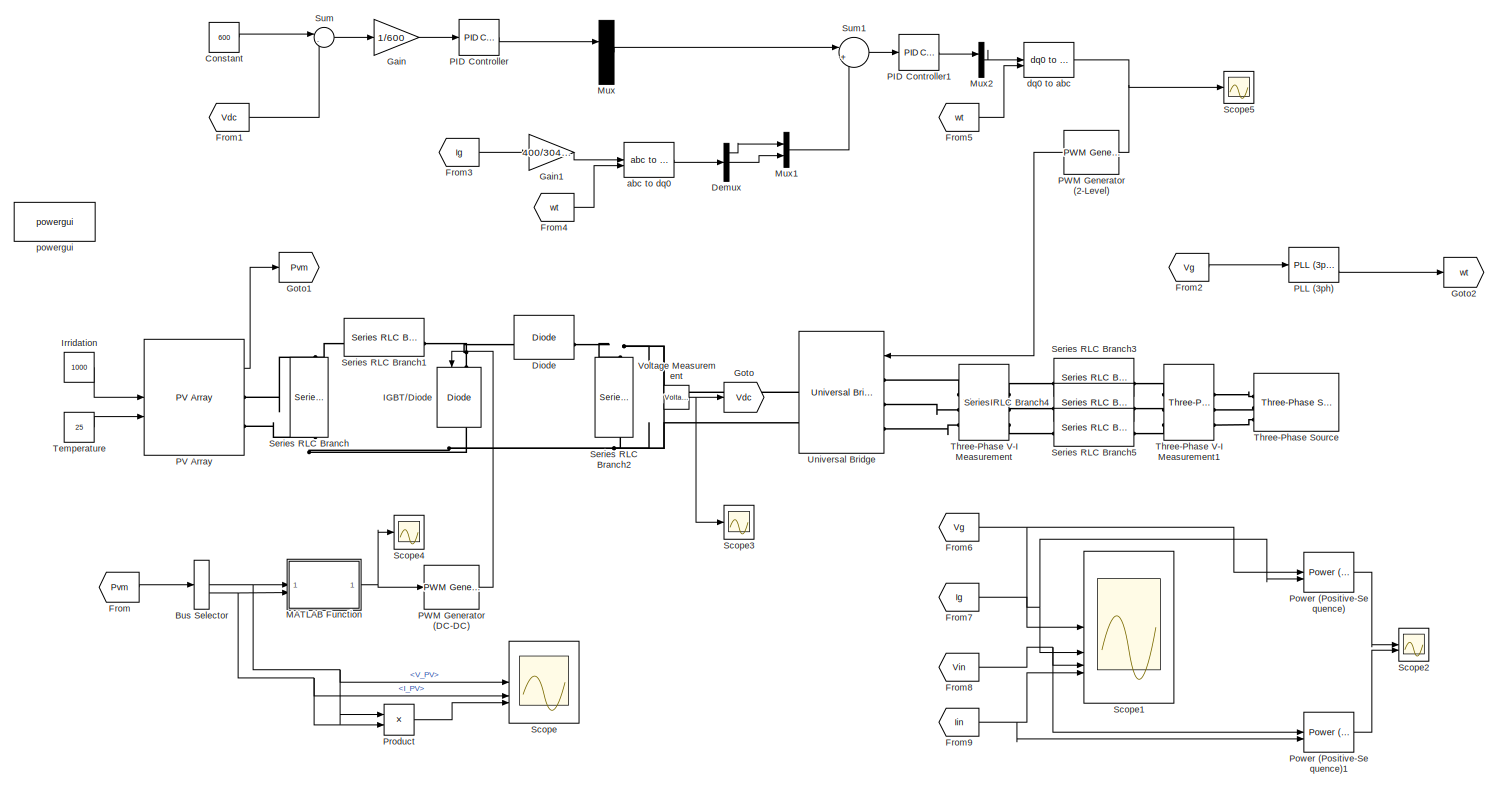
[diagram: root canvas - part 1/1, most of the canvas]
MODEL slx_63f302954788
KIND model
CONFIG AbsTol = auto
CONFIG EnableMultiTasking = off
CONFIG FixedStep = auto
CONFIG MaxStep = auto
CONFIG MinStep = auto
CONFIG RelTol = 1e-3
CONFIG SampleTimeConstraint = Unconstrained
CONFIG SolverName = VariableStepAuto
CONFIG StartTime = 0.0
CONFIG StopTime = 10.0
BLOCK [BusSelector] Bus Selector
  OutputSignals = V_PV,I_PV
BLOCK [Constant] Constant
  Value = 600
BLOCK [Demux] Demux
  Outputs = 3
BLOCK [Reference] Diode  REF=spsDiodeLib/Diode
  LibrarySourceBlock = sps_lib/Power Electronics/Diode
  SourceBlock = spsDiodeLib/Diode
  SourceType = Diode
BLOCK [From] From
  GotoTag = Pvm
BLOCK [From] From1
  GotoTag = Vdc
BLOCK [From] From2
  GotoTag = Vg
  TagVisibility = global
BLOCK [From] From3
  GotoTag = Ig
  TagVisibility = global
BLOCK [From] From4
  GotoTag = wt
BLOCK [From] From5
  GotoTag = wt
BLOCK [From] From6
  GotoTag = Vg
  TagVisibility = global
BLOCK [From] From7
  GotoTag = Ig
  TagVisibility = global
BLOCK [From] From8
  GotoTag = Vin
  TagVisibility = global
BLOCK [From] From9
  GotoTag = Iin
  TagVisibility = global
BLOCK [Gain] Gain
  Gain = 1/600
BLOCK [Gain] Gain1
  Gain = 400/3048000
BLOCK [Goto] Goto
  GotoTag = Vdc
BLOCK [Goto] Goto1
  GotoTag = Pvm
BLOCK [Goto] Goto2
  GotoTag = wt
BLOCK [Reference] IGBT//Diode  REF=spsIGBTDiodeLib/IGBT//Diode
  NameLocation = left
  SourceBlock = spsIGBTDiodeLib/IGBT//Diode
  SourceType = IGBT/Diode
BLOCK [Constant] Irridation
  Value = 1000
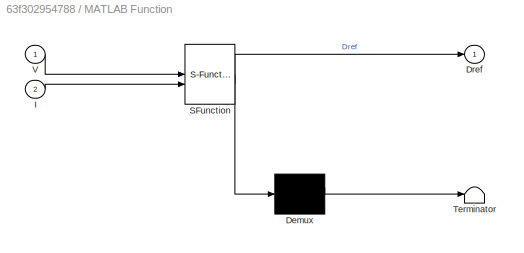
BLOCK [SubSystem] MATLAB Function
  ErrorFcn = Stateflow.Translate.translate
  PermitHierarchicalResolution = ExplicitOnly
  SFBlockType = MATLAB Function
  TreatAsAtomicUnit = on
BLOCK [Demux] MATLAB Function/ Demux 
  Outputs = 1
BLOCK [S-Function] MATLAB Function/ SFunction 
  EnableBusSupport = on
  FunctionName = sf_sfun
  PortCounts = [2 2]
  SFcnIsStateOwnerBlock = off
  SFunctionDeploymentMode = off
  Tag = Stateflow S-Function 2
BLOCK [Terminator] MATLAB Function/ Terminator 
BLOCK [Outport] MATLAB Function/Dref
BLOCK [Inport] MATLAB Function/I
  Port = 2
BLOCK [Inport] MATLAB Function/V
BLOCK [Mux] Mux
  DisplayOption = bar
  Inputs = 2
BLOCK [Mux] Mux1
  DisplayOption = bar
  Inputs = 2
BLOCK [Mux] Mux2
  DisplayOption = bar
  Inputs = 2
BLOCK [Reference] PID Controller  REF=slpidlib/PID Controller
  LibrarySourceBlock = simulink/Continuous/PID Controller
  SourceBlock = slpidlib/PID Controller
  SourceType = PID 1dof
BLOCK [Reference] PID Controller1  REF=slpidlib/PID Controller
  LibrarySourceBlock = simulink/Continuous/PID Controller
  SourceBlock = slpidlib/PID Controller
  SourceType = PID 1dof
BLOCK [Reference] PLL (3ph)  REF=spsPLL3phLib/PLL
(3ph)
  LibrarySourceBlock = sps_lib/Control/PLL\n(3ph)
  SourceBlock = spsPLL3phLib/PLL\n(3ph)
  SourceType = PLL (3ph)
BLOCK [Reference] PV Array  REF=spsPVArrayLib/PV Array
  LibrarySourceBlock = sps_lib/Sources/PV Array
  SourceBlock = spsPVArrayLib/PV Array
  SourceType = PV array
BLOCK [Reference] PWM Generator (2-Level)  REF=spsPWMGenerator2LevelLib/PWM Generator
(2-Level)
  LibrarySourceBlock = sps_lib/Power Electronics/Power Electronics Control/PWM Generator\n(2-Level)
  NameLocation = top
  SourceBlock = spsPWMGenerator2LevelLib/PWM Generator\n(2-Level)
  SourceType = PWM Generator (2-Level)
BLOCK [Reference] PWM Generator (DC-DC)  REF=spsPWMGeneratorDCDCLib/PWM Generator
(DC-DC)
  LibrarySourceBlock = sps_lib/Power Electronics/Power Electronics Control/PWM Generator\n(DC-DC)
  SourceBlock = spsPWMGeneratorDCDCLib/PWM Generator\n(DC-DC)
  SourceType = PWM Generator (DC-DC)
BLOCK [Reference] Power (Positive-Sequence)  REF=spsPowerPositiveSequenceLib/Power
(Positive-Sequence)
  LibrarySourceBlock = sps_lib/Sensors and Measurements/Power\n(Positive-Sequence)
  SourceBlock = spsPowerPositiveSequenceLib/Power\n(Positive-Sequence)
  SourceType = Power (Positive-Sequence)
BLOCK [Reference] Power (Positive-Sequence)1  REF=spsPowerPositiveSequenceLib/Power
(Positive-Sequence)
  LibrarySourceBlock = sps_lib/Sensors and Measurements/Power\n(Positive-Sequence)
  SourceBlock = spsPowerPositiveSequenceLib/Power\n(Positive-Sequence)
  SourceType = Power (Positive-Sequence)
BLOCK [Product] Product
BLOCK [Scope] Scope
  Floating = off
  NumInputPorts = 3
  ScopeSpecificationString = Simulink.scopes.TimeScopeBlockCfg('CurrentConfiguration', extmgr.ConfigurationSet(extmgr.Configuration('Core','General UI',true),extmgr.Configuration('Core','Source UI',true),extmgr.Configuration('Sources','WiredSimulink',true),extmgr.Configuration('Visuals','Time Domain',true,'SerializedDisplays',{struct('MinYLimReal','312.29846','MaxYLimReal','324.95244','YLabelReal','','MinYLimMag','312.29846',...<+3008ch>
BLOCK [Scope] Scope1
  Floating = off
  NumInputPorts = 4
  ScopeSpecificationString = Simulink.scopes.TimeScopeBlockCfg('CurrentConfiguration', extmgr.ConfigurationSet(extmgr.Configuration('Core','General UI',true),extmgr.Configuration('Core','Source UI',true),extmgr.Configuration('Sources','WiredSimulink',true,'DataLoggingVariableName','ScopeData1'),extmgr.Configuration('Visuals','Time Domain',true,'SerializedDisplays',{struct('MinYLimReal','-408.24829','MaxYLimReal','408.24829','...<+4000ch>
BLOCK [Scope] Scope2
  Floating = off
  NumInputPorts = 2
  ScopeSpecificationString = Simulink.scopes.TimeScopeBlockCfg('CurrentConfiguration', extmgr.ConfigurationSet(extmgr.Configuration('Core','General UI',true),extmgr.Configuration('Core','Source UI',true),extmgr.Configuration('Sources','WiredSimulink',true,'DataLoggingVariableName','ScopeData2'),extmgr.Configuration('Visuals','Time Domain',true,'SerializedDisplays',{struct('MinYLimReal','-0.01106','MaxYLimReal','0.07415','YLab...<+2171ch>
BLOCK [Scope] Scope3
  Floating = off
  NumInputPorts = 1
  ScopeSpecificationString = Simulink.scopes.TimeScopeBlockCfg('CurrentConfiguration', extmgr.ConfigurationSet(extmgr.Configuration('Core','General UI',true),extmgr.Configuration('Core','Source UI',true),extmgr.Configuration('Sources','WiredSimulink',true,'DataLoggingVariableName','ScopeData3'),extmgr.Configuration('Visuals','Time Domain',true,'SerializedDisplays',{struct('MinYLimReal','-159.97126','MaxYLimReal','1439.74135',...<+1682ch>
BLOCK [Scope] Scope4
  Floating = off
  NumInputPorts = 1
  ScopeSpecificationString = Simulink.scopes.TimeScopeBlockCfg('CurrentConfiguration', extmgr.ConfigurationSet(extmgr.Configuration('Core','General UI',true),extmgr.Configuration('Core','Source UI',true),extmgr.Configuration('Sources','WiredSimulink',true,'DataLoggingVariableName','ScopeData4'),extmgr.Configuration('Visuals','Time Domain',true,'SerializedDisplays',{struct('MinYLimReal','0.37137','MaxYLimReal','0.81607','YLabe...<+1625ch>
BLOCK [Scope] Scope5
  Floating = off
  NumInputPorts = 1
  ScopeSpecificationString = Simulink.scopes.TimeScopeBlockCfg('CurrentConfiguration', extmgr.ConfigurationSet(extmgr.Configuration('Core','General UI',true),extmgr.Configuration('Core','Source UI',true),extmgr.Configuration('Sources','WiredSimulink',true,'DataLoggingVariableName','ScopeData5'),extmgr.Configuration('Visuals','Time Domain',true,'SerializedDisplays',{struct('MinYLimReal','-2.90047','MaxYLimReal','1.96685','YLab...<+1594ch>
BLOCK [Reference] Series RLC Branch  REF=spsSeriesRLCBranchLib/Series RLC Branch
  LibrarySourceBlock = sps_lib/Passives/Series RLC Branch
  NameLocation = left
  SourceBlock = spsSeriesRLCBranchLib/Series RLC Branch
  SourceType = Series RLC Branch
BLOCK [Reference] Series RLC Branch1  REF=spsSeriesRLCBranchLib/Series RLC Branch
  LibrarySourceBlock = sps_lib/Passives/Series RLC Branch
  NameLocation = top
  SourceBlock = spsSeriesRLCBranchLib/Series RLC Branch
  SourceType = Series RLC Branch
BLOCK [Reference] Series RLC Branch2  REF=spsSeriesRLCBranchLib/Series RLC Branch
  LibrarySourceBlock = sps_lib/Passives/Series RLC Branch
  NameLocation = left
  SourceBlock = spsSeriesRLCBranchLib/Series RLC Branch
  SourceType = Series RLC Branch
BLOCK [Reference] Series RLC Branch3  REF=spsSeriesRLCBranchLib/Series RLC Branch
  LibrarySourceBlock = sps_lib/Passives/Series RLC Branch
  SourceBlock = spsSeriesRLCBranchLib/Series RLC Branch
  SourceType = Series RLC Branch
BLOCK [Reference] Series RLC Branch4  REF=spsSeriesRLCBranchLib/Series RLC Branch
  LibrarySourceBlock = sps_lib/Passives/Series RLC Branch
  SourceBlock = spsSeriesRLCBranchLib/Series RLC Branch
  SourceType = Series RLC Branch
BLOCK [Reference] Series RLC Branch5  REF=spsSeriesRLCBranchLib/Series RLC Branch
  LibrarySourceBlock = sps_lib/Passives/Series RLC Branch
  SourceBlock = spsSeriesRLCBranchLib/Series RLC Branch
  SourceType = Series RLC Branch
BLOCK [Sum] Sum
  Inputs = |-+
BLOCK [Sum] Sum1
  Inputs = |+-
BLOCK [Constant] Temperature
  Value = 25
BLOCK [Reference] Three-Phase Source  REF=spsThreePhaseSourceLib/Three-Phase Source
  LibrarySourceBlock = sps_lib/Sources/Three-Phase Source
  SourceBlock = spsThreePhaseSourceLib/Three-Phase Source
  SourceType = Three-Phase Source
BLOCK [Reference] Three-Phase V-I Measurement  REF=spsThreePhaseVIMeasurementLib/Three-Phase
V-I Measurement
  LibrarySourceBlock = sps_lib/Sensors and Measurements/Three-Phase\nV-I Measurement
  SourceBlock = spsThreePhaseVIMeasurementLib/Three-Phase\nV-I Measurement
  SourceType = Three-Phase VI Measurement
BLOCK [Reference] Three-Phase V-I Measurement1  REF=spsThreePhaseVIMeasurementLib/Three-Phase
V-I Measurement
  LibrarySourceBlock = sps_lib/Sensors and Measurements/Three-Phase\nV-I Measurement
  SourceBlock = spsThreePhaseVIMeasurementLib/Three-Phase\nV-I Measurement
  SourceType = Three-Phase VI Measurement
BLOCK [Reference] Universal Bridge  REF=spsUniversalBridgeLib/Universal Bridge
  LibrarySourceBlock = sps_lib/Power Electronics/Universal Bridge
  NameLocation = top
  SourceBlock = spsUniversalBridgeLib/Universal Bridge
  SourceType = Universal Bridge
BLOCK [Reference] Voltage Measurement  REF=spsVoltageMeasurementLib/Voltage Measurement
  LibrarySourceBlock = sps_lib/Sensors and Measurements/Voltage Measurement
  SourceBlock = spsVoltageMeasurementLib/Voltage Measurement
  SourceType = Voltage Measurement
  UserDataPersistent = on
BLOCK [Reference] abc to dq0  REF=spsabctodq0Lib/abc to dq0
  LibrarySourceBlock = sps_lib/Control/abc to dq0
  SourceBlock = spsabctodq0Lib/abc to dq0
  SourceType = abc to dq0 Transformation
BLOCK [Reference] dq0 to abc  REF=spsdq0toabcLib/dq0 to abc
  LibrarySourceBlock = sps_lib/Control/dq0 to abc
  SourceBlock = spsdq0toabcLib/dq0 to abc
  SourceType = dq0 to abc Transformation
BLOCK [Reference] powergui  REF=sps_lib/powergui
  LibrarySourceBlock = sps_lib/powergui
  Priority = 1
  SourceBlock = sps_lib/powergui
  SourceType = PSB option menu block
NET Bus Selector:1 -> MATLAB Function:1, Product:1, Scope:1
NET Bus Selector:2 -> MATLAB Function:2, Product:2, Scope:2
LINE Constant:1 -> Sum:1
LINE Demux:1 -> Mux1:1
LINE Demux:2 -> Mux1:2
LINE From1:1 -> Sum:2
LINE From2:1 -> PLL (3ph):1
LINE From3:1 -> Gain1:1
LINE From4:1 -> abc to dq0:2
LINE From5:1 -> dq0 to abc:2
NET From6:1 -> Power (Positive-Sequence):1, Scope1:1
NET From7:1 -> Power (Positive-Sequence):2, Scope1:2
NET From8:1 -> Power (Positive-Sequence)1:1, Scope1:3
NET From9:1 -> Power (Positive-Sequence)1:2, Scope1:4
LINE From:1 -> Bus Selector:1
LINE Gain1:1 -> abc to dq0:1
LINE Gain:1 -> PID Controller:1
LINE Irridation:1 -> PV Array:1
NET MATLAB Function:1 -> PWM Generator (DC-DC):1, Scope4:1
LINE Mux1:1 -> Sum1:2
LINE Mux2:1 -> dq0 to abc:1
LINE Mux:1 -> Sum1:1
LINE PID Controller1:1 -> Mux2:1
LINE PID Controller:1 -> Mux:1
LINE PLL (3ph):2 -> Goto2:1
LINE PV Array:1 -> Goto1:1
LINE PWM Generator (2-Level):1 -> Universal Bridge:1
LINE PWM Generator (DC-DC):1 -> IGBT//Diode:1
LINE Power (Positive-Sequence)1:1 -> Scope2:2
LINE Power (Positive-Sequence):1 -> Scope2:1
LINE Product:1 -> Scope:3
LINE Sum1:1 -> PID Controller1:1
LINE Sum:1 -> Gain:1
LINE Temperature:1 -> PV Array:2
NET Voltage Measurement:1 -> Goto:1, Scope3:1
LINE abc to dq0:1 -> Demux:1
NET dq0 to abc:1 -> PWM Generator (2-Level):1, Scope5:1
PNET net1: Diode:LConn1 -- IGBT//Diode:LConn1 -- Series RLC Branch1:LConn1
PNET net2: Diode:RConn1 -- Series RLC Branch2:LConn1 -- Universal Bridge:RConn1 -- Voltage Measurement:LConn1
PNET net3: IGBT//Diode:RConn1 -- PV Array:RConn2 -- Series RLC Branch2:RConn1 -- Series RLC Branch:RConn1 -- Universal Bridge:RConn2 -- Voltage Measurement:LConn2
PNET net4: PV Array:RConn1 -- Series RLC Branch1:RConn1 -- Series RLC Branch:LConn1
PLINE Series RLC Branch3:LConn1 -- Three-Phase V-I Measurement:RConn1
PLINE Series RLC Branch3:RConn1 -- Three-Phase V-I Measurement1:LConn1
PLINE Series RLC Branch4:LConn1 -- Three-Phase V-I Measurement:RConn2
PLINE Series RLC Branch4:RConn1 -- Three-Phase V-I Measurement1:LConn2
PLINE Series RLC Branch5:LConn1 -- Three-Phase V-I Measurement:RConn3
PLINE Series RLC Branch5:RConn1 -- Three-Phase V-I Measurement1:LConn3
PLINE Three-Phase Source:RConn1 -- Three-Phase V-I Measurement1:RConn1
PLINE Three-Phase Source:RConn2 -- Three-Phase V-I Measurement1:RConn2
PLINE Three-Phase Source:RConn3 -- Three-Phase V-I Measurement1:RConn3
PLINE Three-Phase V-I Measurement:LConn1 -- Universal Bridge:LConn1
PLINE Three-Phase V-I Measurement:LConn2 -- Universal Bridge:LConn2
PLINE Three-Phase V-I Measurement:LConn3 -- Universal Bridge:LConn3
note: NET lines group one-source signal fan-out (src -> all destinations, sorted); 1:1 wires keep LINE; PNET lines group multi-terminal physical nets as a canonical sorted terminal list (undirected conserving connections); 2-terminal nets keep the pairwise PLINE form
CHART MATLAB Function states=1 transitions=1
  STATE_LABEL 'eML_blk_kernel()'
  STATE_LABEL 'SCRIPT:\n%%This MATLAB function implements a Maximum Power Point Tracking (MPPT) algorithm, \n% commonly used in photovoltaic (solar panel) systems to maximize the power\n% output by adjusting the duty cycle of the power converter.\nfunction Dref = mppt(V,I)\nDinit = 0.42;\nDmax = 0.9;\nDmin = 0.1;\ndelDref = 0.00008;\n\npersistent Vold Pold Drefold\n\nif(isempty(Vold))\nVold = 0;\nPold = 0;\nDrefold = Dinit;\nen...<+326ch>'
CHART  states=0 transitions=0
